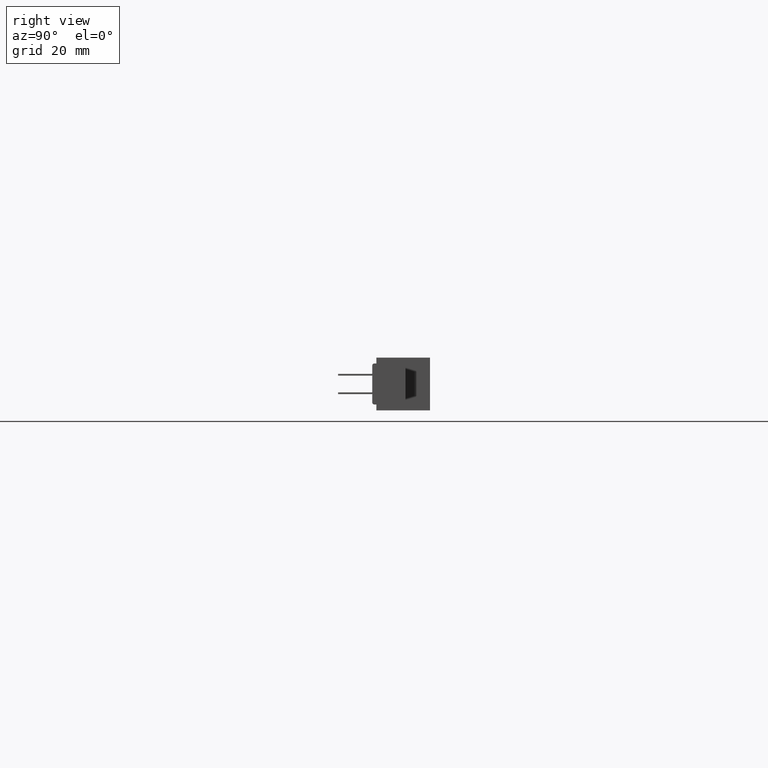
[diagram: clean part render]
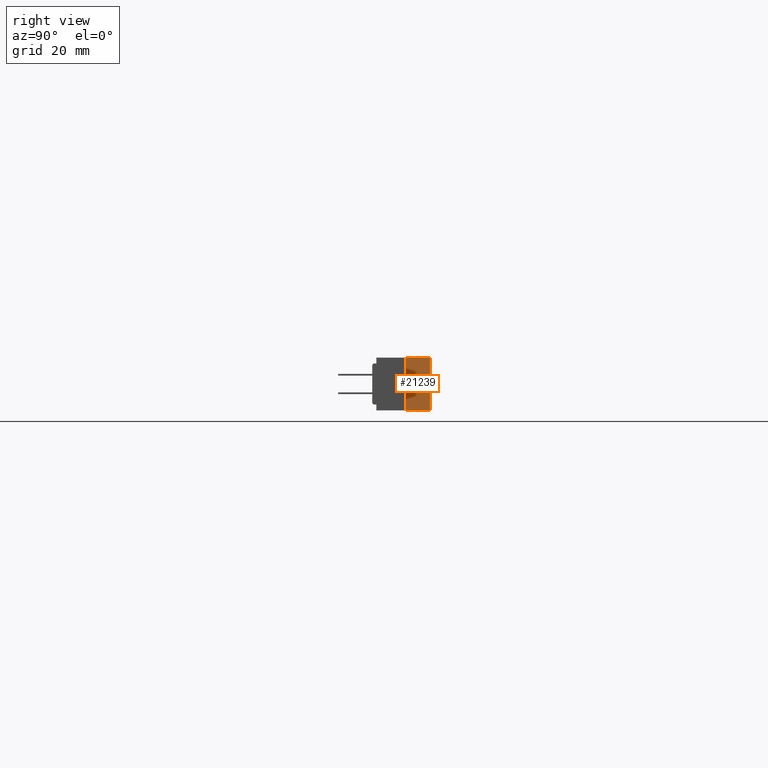
[diagram: same view with one face highlighted and labeled with its STEP entity id]
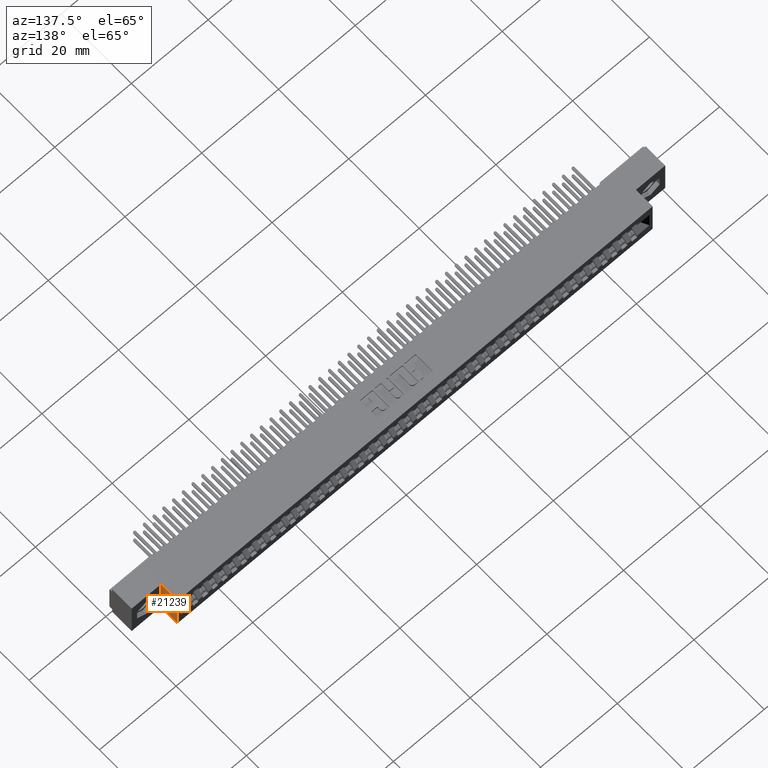
[diagram: same view with one face highlighted and labeled with its STEP entity id]
A machine part, right view. The second image highlights one B-rep face of the part: STEP entity #21239.
A second angle (auxiliary view) of the same face is appended — the face is thin or edge-on in the first view.
In plain terms, the highlighted planar face has unit normal (-1, 0, 0).
Its self-contained STEP definition (entity closure, byte-faithful):
#790 = CARTESIAN_POINT ( 'NONE',  ( 5.175000000000000700, 0.2500000000000000000, -0.4000000000000000200 ) ) ;
#1186 = DIRECTION ( 'NONE',  ( -1.000000000000000000, 0.0000000000000000000, 0.0000000000000000000 ) ) ;
#2027 = DIRECTION ( 'NONE',  ( -0.0000000000000000000, 1.000000000000000000, -0.0000000000000000000 ) ) ;
#3272 = VERTEX_POINT ( 'NONE', #50835 ) ;
#3599 = VECTOR ( 'NONE', #29203, 39.37007874015748100 ) ;
#4145 = VECTOR ( 'NONE', #39454, 39.37007874015748100 ) ;
#4526 = CARTESIAN_POINT ( 'NONE',  ( 5.175000000000000700, 0.2500000000000000000, -0.4000000000000000200 ) ) ;
#5309 = CARTESIAN_POINT ( 'NONE',  ( 5.175000000000000700, 0.2500000000000000000, -1.836970198721029400E-017 ) ) ;
#9212 = LINE ( 'NONE', #23676, #10608 ) ;
#10014 = VECTOR ( 'NONE', #23435, 39.37007874015748100 ) ;
#10608 = VECTOR ( 'NONE', #2027, 39.37007874015748100 ) ;
#13472 = VERTEX_POINT ( 'NONE', #5309 ) ;
#14687 = CARTESIAN_POINT ( 'NONE',  ( 5.175000000000000700, 0.2500000000000000000, -0.4000000000000000200 ) ) ;
#15083 = LINE ( 'NONE', #16214, #3599 ) ;
#16214 = CARTESIAN_POINT ( 'NONE',  ( 5.175000000000000700, 0.2500000000000000000, -0.4000000000000000200 ) ) ;
#19612 = ORIENTED_EDGE ( 'NONE', *, *, #26611, .F. ) ;
#21239 = ADVANCED_FACE ( 'NONE', ( #45389 ), #52565, .F. ) ;
#23435 = DIRECTION ( 'NONE',  ( 0.0000000000000000000, 0.0000000000000000000, 1.000000000000000000 ) ) ;
#23676 = CARTESIAN_POINT ( 'NONE',  ( 5.175000000000000700, 0.2500000000000000000, -1.836970198721029400E-017 ) ) ;
#24898 = VERTEX_POINT ( 'NONE', #14687 ) ;
#26611 = EDGE_CURVE ( 'NONE', #24898, #13472, #15083, .T. ) ;
#28443 = LINE ( 'NONE', #790, #4145 ) ;
#29203 = DIRECTION ( 'NONE',  ( 0.0000000000000000000, 0.0000000000000000000, 1.000000000000000000 ) ) ;
#29992 = CARTESIAN_POINT ( 'NONE',  ( 5.175000000000000700, 0.4370000000000000000, -1.836970198721029400E-017 ) ) ;
#30925 = EDGE_CURVE ( 'NONE', #13472, #53513, #9212, .T. ) ;
#31264 = DIRECTION ( 'NONE',  ( 0.0000000000000000000, 0.0000000000000000000, 1.000000000000000000 ) ) ;
#32369 = ORIENTED_EDGE ( 'NONE', *, *, #54192, .T. ) ;
#34504 = EDGE_LOOP ( 'NONE', ( #51732, #41700, #19612, #32369 ) ) ;
#39454 = DIRECTION ( 'NONE',  ( -0.0000000000000000000, 1.000000000000000000, -0.0000000000000000000 ) ) ;
#41700 = ORIENTED_EDGE ( 'NONE', *, *, #30925, .F. ) ;
#42930 = LINE ( 'NONE', #49098, #10014 ) ;
#44275 = EDGE_CURVE ( 'NONE', #3272, #53513, #42930, .T. ) ;
#45389 = FACE_OUTER_BOUND ( 'NONE', #34504, .T. ) ;
#49098 = CARTESIAN_POINT ( 'NONE',  ( 5.175000000000000700, 0.4370000000000000000, -0.4000000000000000200 ) ) ;
#50835 = CARTESIAN_POINT ( 'NONE',  ( 5.175000000000000700, 0.4370000000000000000, -0.4000000000000000200 ) ) ;
#51732 = ORIENTED_EDGE ( 'NONE', *, *, #44275, .T. ) ;
#52565 = PLANE ( 'NONE',  #53869 ) ;
#53513 = VERTEX_POINT ( 'NONE', #29992 ) ;
#53869 = AXIS2_PLACEMENT_3D ( 'NONE', #4526, #1186, #31264 ) ;
#54192 = EDGE_CURVE ( 'NONE', #24898, #3272, #28443, .T. ) ;